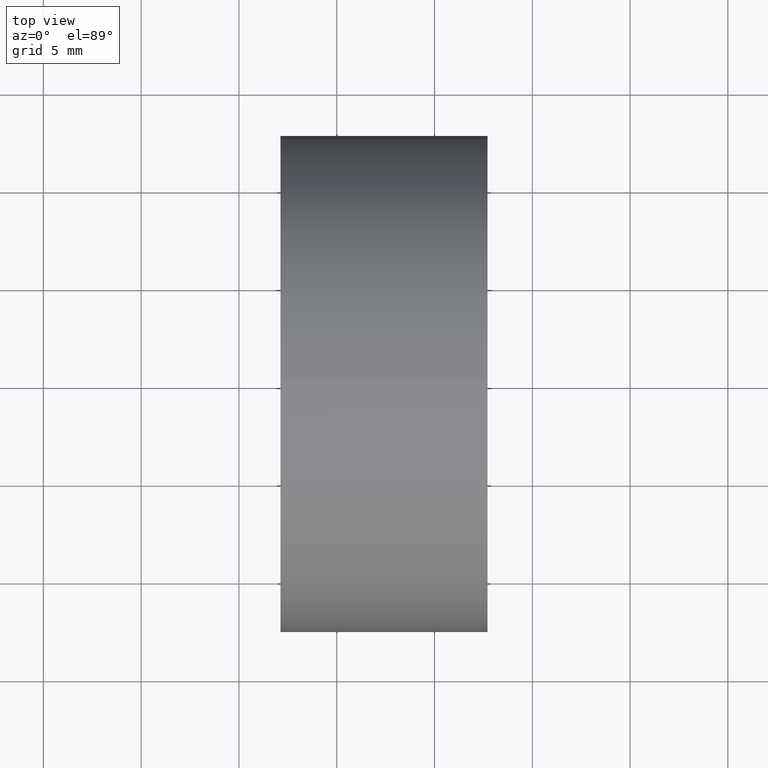
[diagram: clean part render]
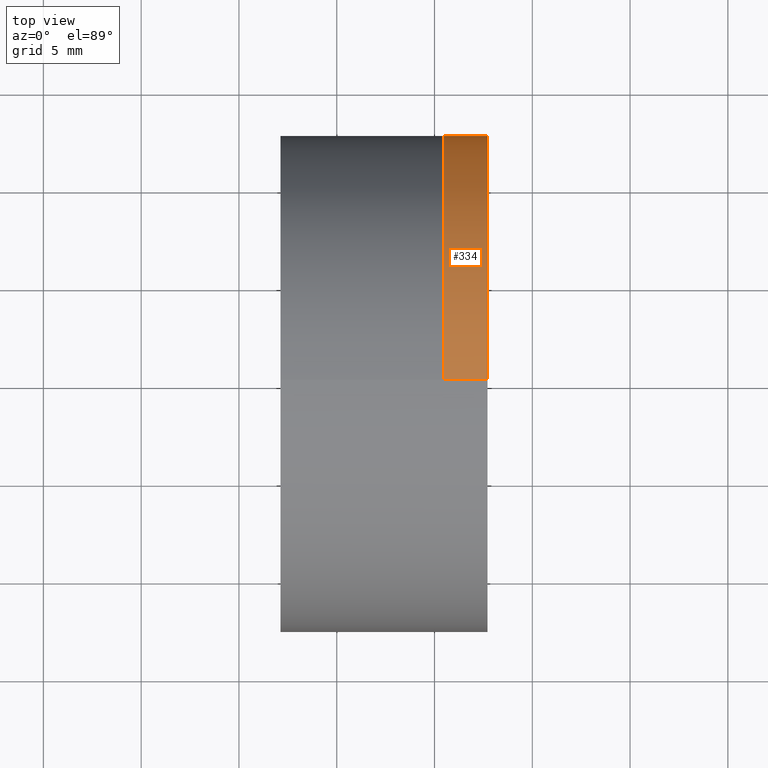
[diagram: same view with one face highlighted and labeled with its STEP entity id]
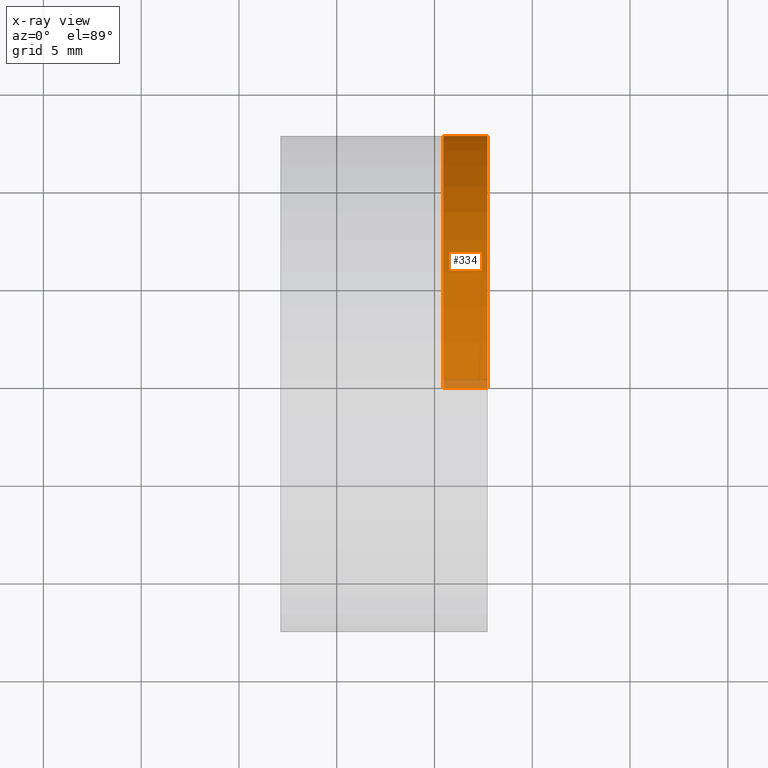
[diagram: x-ray of the same camera — body ghosted, the highlighted face saturated]
A machine part, top view. The second image highlights one B-rep face of the part: STEP entity #334.
The next image is the same camera in x-ray: the body ghosted, the highlighted face saturated — about 3% of this face is hidden behind the body in this view.
In plain terms, the highlighted cylindrical surface (partial cylindrical patch) has radius 12.7 mm, axis along (-1, -0, -0).
Its self-contained STEP definition (entity closure, byte-faithful):
#2 = ORIENTED_EDGE ( 'NONE', *, *, #235, .T. ) ;
#3 = CARTESIAN_POINT ( 'NONE',  ( 267.7101150449228700, 0.0000000000000000000, 0.0000000000000000000 ) ) ;
#13 = DIRECTION ( 'NONE',  ( 0.0000000000000000000, 0.0000000000000000000, 1.000000000000000000 ) ) ;
#19 = FACE_OUTER_BOUND ( 'NONE', #133, .T. ) ;
#25 = CARTESIAN_POINT ( 'NONE',  ( 267.7101150449228700, 0.0000000000000000000, 12.69999999999999800 ) ) ;
#33 = CARTESIAN_POINT ( 'NONE',  ( 265.4434669434605200, 0.0000000000000000000, 12.69999999999995000 ) ) ;
#37 = CARTESIAN_POINT ( 'NONE',  ( 257.1233165672844600, 1.555301434917135700E-015, -12.69999999999997400 ) ) ;
#48 = CARTESIAN_POINT ( 'NONE',  ( 257.1233165672844600, 0.0000000000000000000, 0.0000000000000000000 ) ) ;
#50 = DIRECTION ( 'NONE',  ( -1.000000000000000000, -0.0000000000000000000, -0.0000000000000000000 ) ) ;
#77 = AXIS2_PLACEMENT_3D ( 'NONE', #96, #289, #13 ) ;
#86 = CARTESIAN_POINT ( 'NONE',  ( 265.4434669434605200, 1.555301434917132300E-015, -12.69999999999995000 ) ) ;
#96 = CARTESIAN_POINT ( 'NONE',  ( 265.4434669434605200, 0.0000000000000000000, 0.0000000000000000000 ) ) ;
#97 = ORIENTED_EDGE ( 'NONE', *, *, #126, .T. ) ;
#103 = AXIS2_PLACEMENT_3D ( 'NONE', #3, #165, #288 ) ;
#126 = EDGE_CURVE ( 'NONE', #129, #328, #135, .T. ) ;
#129 = VERTEX_POINT ( 'NONE', #25 ) ;
#131 = LINE ( 'NONE', #37, #267 ) ;
#133 = EDGE_LOOP ( 'NONE', ( #97, #2, #313, #278 ) ) ;
#135 = CIRCLE ( 'NONE', #103, 12.69999999999999800 ) ;
#136 = VERTEX_POINT ( 'NONE', #86 ) ;
#137 = DIRECTION ( 'NONE',  ( 0.0000000000000000000, 0.0000000000000000000, 1.000000000000000000 ) ) ;
#150 = VERTEX_POINT ( 'NONE', #33 ) ;
#165 = DIRECTION ( 'NONE',  ( -1.000000000000000000, -0.0000000000000000000, -0.0000000000000000000 ) ) ;
#186 = LINE ( 'NONE', #209, #246 ) ;
#189 = CARTESIAN_POINT ( 'NONE',  ( 267.7101150449228700, 1.555301434917138200E-015, -12.69999999999999800 ) ) ;
#209 = CARTESIAN_POINT ( 'NONE',  ( 257.1233165672844600, 0.0000000000000000000, 12.69999999999997400 ) ) ;
#226 = AXIS2_PLACEMENT_3D ( 'NONE', #48, #325, #137 ) ;
#235 = EDGE_CURVE ( 'NONE', #328, #136, #131, .T. ) ;
#246 = VECTOR ( 'NONE', #50, 1000.000000000000000 ) ;
#253 = EDGE_CURVE ( 'NONE', #150, #136, #338, .T. ) ;
#261 = DIRECTION ( 'NONE',  ( -1.000000000000000000, -0.0000000000000000000, -0.0000000000000000000 ) ) ;
#267 = VECTOR ( 'NONE', #261, 1000.000000000000000 ) ;
#278 = ORIENTED_EDGE ( 'NONE', *, *, #295, .F. ) ;
#288 = DIRECTION ( 'NONE',  ( 0.0000000000000000000, 0.0000000000000000000, 1.000000000000000000 ) ) ;
#289 = DIRECTION ( 'NONE',  ( -1.000000000000000000, -0.0000000000000000000, -0.0000000000000000000 ) ) ;
#295 = EDGE_CURVE ( 'NONE', #129, #150, #186, .T. ) ;
#309 = CYLINDRICAL_SURFACE ( 'NONE', #226, 12.69999999999997400 ) ;
#313 = ORIENTED_EDGE ( 'NONE', *, *, #253, .F. ) ;
#325 = DIRECTION ( 'NONE',  ( -1.000000000000000000, -0.0000000000000000000, -0.0000000000000000000 ) ) ;
#328 = VERTEX_POINT ( 'NONE', #189 ) ;
#334 = ADVANCED_FACE ( 'NONE', ( #19 ), #309, .T. ) ;
#338 = CIRCLE ( 'NONE', #77, 12.69999999999995100 ) ;